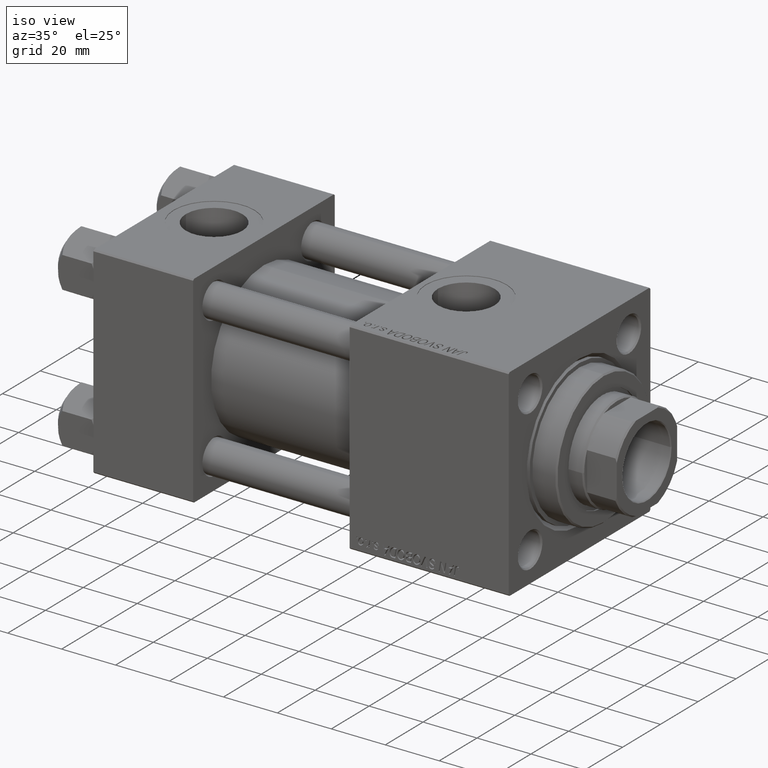
[diagram: clean part render]
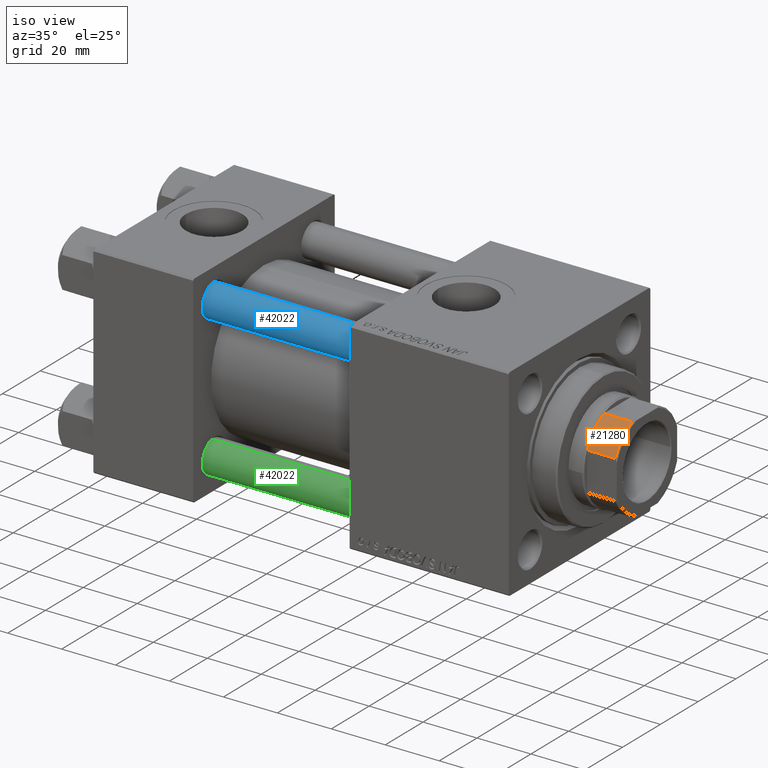
[diagram: same view with three faces highlighted in distinct colors, each labeled with its STEP entity id]
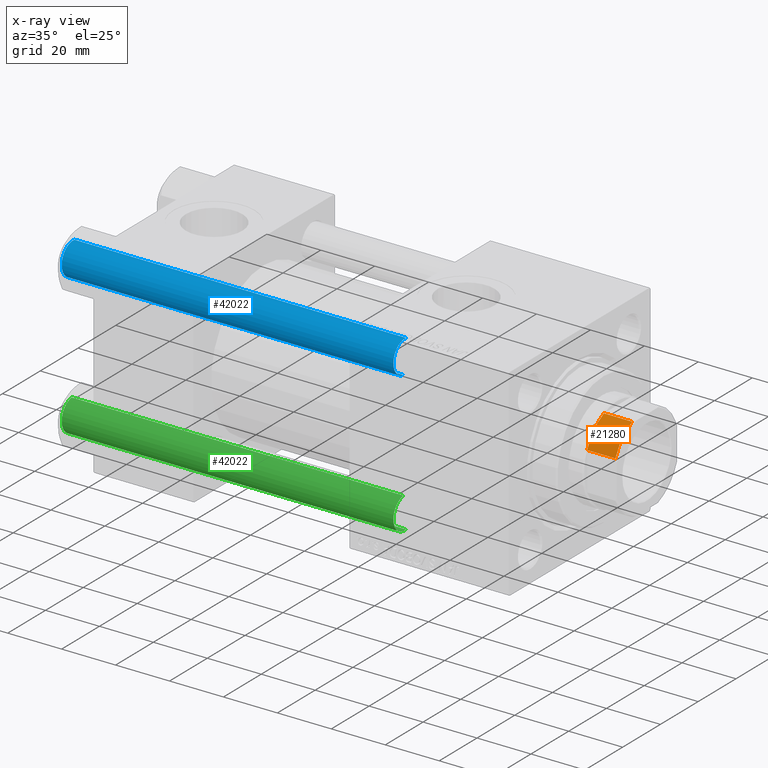
[diagram: x-ray of the same camera — body ghosted, the three highlighted faces saturated]
A machine part, iso view with three faces highlighted in distinct colors.
The next image is the same camera in x-ray (body ghosted, the three faces saturated) — at least one of them is partly hidden behind the body in this view.
Their STEP definitions:

[orange] entity #21280 — the highlighted cylindrical surface (partial cylindrical patch) has radius 17.5 mm, axis along (1, 0, 0).
#4210 = DIRECTION ( 'NONE',  ( 1.000000000000000000, 0.000000000000000000, 0.000000000000000000 ) ) ;
#4360 = CARTESIAN_POINT ( 'NONE',  ( 0.000000000000000000, 0.000000000000000000, 141.5000000000000284 ) ) ;
#4707 = CIRCLE ( 'NONE', #24196, 17.50000000000000000 ) ;
#4791 = EDGE_CURVE ( 'NONE', #11522, #18567, #9412, .T. ) ;
#4814 = FACE_OUTER_BOUND ( 'NONE', #8029, .T. ) ;
#7500 = DIRECTION ( 'NONE',  ( 0.000000000000000000, 0.000000000000000000, 1.000000000000000000 ) ) ;
#8029 = EDGE_LOOP ( 'NONE', ( #20080, #13726, #49669, #9561 ) ) ;
#9412 = LINE ( 'NONE', #10148, #15543 ) ;
#9561 = ORIENTED_EDGE ( 'NONE', *, *, #40441, .T. ) ;
#10148 = CARTESIAN_POINT ( 'NONE',  ( 15.99999999999999645, -7.088723439378925129, -0.001000000000001000089 ) ) ;
#11522 = VERTEX_POINT ( 'NONE', #25173 ) ;
#13726 = ORIENTED_EDGE ( 'NONE', *, *, #41921, .T. ) ;
#15543 = VECTOR ( 'NONE', #36829, 1000.000000000000000 ) ;
#16160 = VERTEX_POINT ( 'NONE', #24770 ) ;
#18567 = VERTEX_POINT ( 'NONE', #22635 ) ;
#18787 = EDGE_CURVE ( 'NONE', #16160, #36904, #36817, .T. ) ;
#19588 = DIRECTION ( 'NONE',  ( -0.000000000000000000, -0.000000000000000000, -1.000000000000000000 ) ) ;
#20080 = ORIENTED_EDGE ( 'NONE', *, *, #4791, .T. ) ;
#20308 = DIRECTION ( 'NONE',  ( -0.000000000000000000, -0.000000000000000000, 1.000000000000000000 ) ) ;
#21280 = ADVANCED_FACE ( 'NONE', ( #4814 ), #38603, .T. ) ;
#22635 = CARTESIAN_POINT ( 'NONE',  ( 15.99999999999999645, -7.088723439378925129, 141.5000000000000284 ) ) ;
#24196 = AXIS2_PLACEMENT_3D ( 'NONE', #4360, #19588, #31020 ) ;
#24462 = AXIS2_PLACEMENT_3D ( 'NONE', #35041, #20308, #35788 ) ;
#24770 = CARTESIAN_POINT ( 'NONE',  ( 7.088723439378915359, -16.00000000000000000, 131.0000000000000284 ) ) ;
#24801 = VECTOR ( 'NONE', #29185, 1000.000000000000000 ) ;
#25173 = CARTESIAN_POINT ( 'NONE',  ( 15.99999999999999645, -7.088723439378925129, 131.0000000000000284 ) ) ;
#29185 = DIRECTION ( 'NONE',  ( -0.000000000000000000, -0.000000000000000000, 1.000000000000000000 ) ) ;
#30614 = AXIS2_PLACEMENT_3D ( 'NONE', #34931, #7500, #4210 ) ;
#31020 = DIRECTION ( 'NONE',  ( 1.000000000000000000, 0.000000000000000000, 0.000000000000000000 ) ) ;
#31440 = CIRCLE ( 'NONE', #30614, 17.50000000000003908 ) ;
#34931 = CARTESIAN_POINT ( 'NONE',  ( 0.000000000000000000, 0.000000000000000000, 131.0000000000000000 ) ) ;
#35041 = CARTESIAN_POINT ( 'NONE',  ( 0.000000000000000000, 0.000000000000000000, -0.001000000000001000089 ) ) ;
#35788 = DIRECTION ( 'NONE',  ( 1.000000000000000000, 0.000000000000000000, 0.000000000000000000 ) ) ;
#36817 = LINE ( 'NONE', #47732, #24801 ) ;
#36829 = DIRECTION ( 'NONE',  ( -0.000000000000000000, -0.000000000000000000, 1.000000000000000000 ) ) ;
#36904 = VERTEX_POINT ( 'NONE', #39230 ) ;
#38603 = CYLINDRICAL_SURFACE ( 'NONE', #24462, 17.50000000000000000 ) ;
#39230 = CARTESIAN_POINT ( 'NONE',  ( 7.088723439378915359, -16.00000000000000000, 141.5000000000000284 ) ) ;
#40441 = EDGE_CURVE ( 'NONE', #16160, #11522, #31440, .T. ) ;
#41921 = EDGE_CURVE ( 'NONE', #18567, #36904, #4707, .T. ) ;
#47732 = CARTESIAN_POINT ( 'NONE',  ( 7.088723439378915359, -16.00000000000000000, -0.001000000000001000089 ) ) ;
#49669 = ORIENTED_EDGE ( 'NONE', *, *, #18787, .F. ) ;

[blue] entity #42022 — the highlighted cylindrical surface (edge-blend (fillet) strip) has radius 6 mm, axis along (1, 0, -0).
#2367 = CARTESIAN_POINT ( 'NONE',  ( 6.000000000000000888, 7.347880794884120722E-16, 123.5000000000000426 ) ) ;
#2430 = ORIENTED_EDGE ( 'NONE', *, *, #5201, .T. ) ;
#4036 = EDGE_CURVE ( 'NONE', #18963, #17575, #44673, .T. ) ;
#5201 = EDGE_CURVE ( 'NONE', #28241, #17575, #13118, .T. ) ;
#6894 = CARTESIAN_POINT ( 'NONE',  ( 6.000000000000000888, 7.347880794884120722E-16, 124.0000000000000000 ) ) ;
#9070 = ORIENTED_EDGE ( 'NONE', *, *, #4036, .F. ) ;
#11880 = AXIS2_PLACEMENT_3D ( 'NONE', #47180, #27911, #24351 ) ;
#12324 = AXIS2_PLACEMENT_3D ( 'NONE', #28841, #44326, #25045 ) ;
#13118 = CIRCLE ( 'NONE', #12324, 6.000000000000000888 ) ;
#13223 = CARTESIAN_POINT ( 'NONE',  ( 0.000000000000000000, 0.000000000000000000, 124.0000000000000000 ) ) ;
#17131 = ORIENTED_EDGE ( 'NONE', *, *, #41762, .T. ) ;
#17575 = VERTEX_POINT ( 'NONE', #23180 ) ;
#18963 = VERTEX_POINT ( 'NONE', #31209 ) ;
#19840 = EDGE_CURVE ( 'NONE', #18963, #24763, #33756, .T. ) ;
#21646 = LINE ( 'NONE', #6894, #31476 ) ;
#23180 = CARTESIAN_POINT ( 'NONE',  ( -6.000000000000000888, 0.000000000000000000, 0.4999999999999865663 ) ) ;
#24351 = DIRECTION ( 'NONE',  ( 1.000000000000000000, 0.000000000000000000, 0.000000000000000000 ) ) ;
#24673 = DIRECTION ( 'NONE',  ( -1.000000000000000000, 0.000000000000000000, 0.000000000000000000 ) ) ;
#24763 = VERTEX_POINT ( 'NONE', #2367 ) ;
#25045 = DIRECTION ( 'NONE',  ( 1.000000000000000000, 0.000000000000000000, 0.000000000000000000 ) ) ;
#27911 = DIRECTION ( 'NONE',  ( 0.000000000000000000, 0.000000000000000000, -1.000000000000000000 ) ) ;
#28241 = VERTEX_POINT ( 'NONE', #38180 ) ;
#28814 = ORIENTED_EDGE ( 'NONE', *, *, #19840, .T. ) ;
#28841 = CARTESIAN_POINT ( 'NONE',  ( 0.000000000000000000, 0.000000000000000000, 0.4999999999999865663 ) ) ;
#31209 = CARTESIAN_POINT ( 'NONE',  ( -6.000000000000000888, 0.000000000000000000, 123.5000000000000426 ) ) ;
#31476 = VECTOR ( 'NONE', #37132, 1000.000000000000000 ) ;
#33245 = DIRECTION ( 'NONE',  ( -0.000000000000000000, -0.000000000000000000, -1.000000000000000000 ) ) ;
#33327 = VECTOR ( 'NONE', #33245, 1000.000000000000000 ) ;
#33756 = CIRCLE ( 'NONE', #11880, 6.000000000000000888 ) ;
#36077 = CYLINDRICAL_SURFACE ( 'NONE', #47683, 6.000000000000000888 ) ;
#37065 = CARTESIAN_POINT ( 'NONE',  ( -6.000000000000000888, 0.000000000000000000, 124.0000000000000000 ) ) ;
#37132 = DIRECTION ( 'NONE',  ( -0.000000000000000000, -0.000000000000000000, -1.000000000000000000 ) ) ;
#38180 = CARTESIAN_POINT ( 'NONE',  ( 6.000000000000000888, 7.347880794884120722E-16, 0.4999999999999865663 ) ) ;
#41452 = EDGE_LOOP ( 'NONE', ( #28814, #17131, #2430, #9070 ) ) ;
#41762 = EDGE_CURVE ( 'NONE', #24763, #28241, #21646, .T. ) ;
#42022 = ADVANCED_FACE ( 'NONE', ( #47490 ), #36077, .T. ) ;
#43695 = DIRECTION ( 'NONE',  ( -0.000000000000000000, -0.000000000000000000, -1.000000000000000000 ) ) ;
#44326 = DIRECTION ( 'NONE',  ( -0.000000000000000000, -0.000000000000000000, 1.000000000000000000 ) ) ;
#44673 = LINE ( 'NONE', #37065, #33327 ) ;
#47180 = CARTESIAN_POINT ( 'NONE',  ( 0.000000000000000000, 0.000000000000000000, 123.5000000000000426 ) ) ;
#47490 = FACE_OUTER_BOUND ( 'NONE', #41452, .T. ) ;
#47683 = AXIS2_PLACEMENT_3D ( 'NONE', #13223, #43695, #24673 ) ;

[green] entity #42022 — the highlighted cylindrical surface (edge-blend (fillet) strip) has radius 6 mm, axis along (-1, -0, -0).
#2367 = CARTESIAN_POINT ( 'NONE',  ( 6.000000000000000888, 7.347880794884120722E-16, 123.5000000000000426 ) ) ;
#2430 = ORIENTED_EDGE ( 'NONE', *, *, #5201, .T. ) ;
#4036 = EDGE_CURVE ( 'NONE', #18963, #17575, #44673, .T. ) ;
#5201 = EDGE_CURVE ( 'NONE', #28241, #17575, #13118, .T. ) ;
#6894 = CARTESIAN_POINT ( 'NONE',  ( 6.000000000000000888, 7.347880794884120722E-16, 124.0000000000000000 ) ) ;
#9070 = ORIENTED_EDGE ( 'NONE', *, *, #4036, .F. ) ;
#11880 = AXIS2_PLACEMENT_3D ( 'NONE', #47180, #27911, #24351 ) ;
#12324 = AXIS2_PLACEMENT_3D ( 'NONE', #28841, #44326, #25045 ) ;
#13118 = CIRCLE ( 'NONE', #12324, 6.000000000000000888 ) ;
#13223 = CARTESIAN_POINT ( 'NONE',  ( 0.000000000000000000, 0.000000000000000000, 124.0000000000000000 ) ) ;
#17131 = ORIENTED_EDGE ( 'NONE', *, *, #41762, .T. ) ;
#17575 = VERTEX_POINT ( 'NONE', #23180 ) ;
#18963 = VERTEX_POINT ( 'NONE', #31209 ) ;
#19840 = EDGE_CURVE ( 'NONE', #18963, #24763, #33756, .T. ) ;
#21646 = LINE ( 'NONE', #6894, #31476 ) ;
#23180 = CARTESIAN_POINT ( 'NONE',  ( -6.000000000000000888, 0.000000000000000000, 0.4999999999999865663 ) ) ;
#24351 = DIRECTION ( 'NONE',  ( 1.000000000000000000, 0.000000000000000000, 0.000000000000000000 ) ) ;
#24673 = DIRECTION ( 'NONE',  ( -1.000000000000000000, 0.000000000000000000, 0.000000000000000000 ) ) ;
#24763 = VERTEX_POINT ( 'NONE', #2367 ) ;
#25045 = DIRECTION ( 'NONE',  ( 1.000000000000000000, 0.000000000000000000, 0.000000000000000000 ) ) ;
#27911 = DIRECTION ( 'NONE',  ( 0.000000000000000000, 0.000000000000000000, -1.000000000000000000 ) ) ;
#28241 = VERTEX_POINT ( 'NONE', #38180 ) ;
#28814 = ORIENTED_EDGE ( 'NONE', *, *, #19840, .T. ) ;
#28841 = CARTESIAN_POINT ( 'NONE',  ( 0.000000000000000000, 0.000000000000000000, 0.4999999999999865663 ) ) ;
#31209 = CARTESIAN_POINT ( 'NONE',  ( -6.000000000000000888, 0.000000000000000000, 123.5000000000000426 ) ) ;
#31476 = VECTOR ( 'NONE', #37132, 1000.000000000000000 ) ;
#33245 = DIRECTION ( 'NONE',  ( -0.000000000000000000, -0.000000000000000000, -1.000000000000000000 ) ) ;
#33327 = VECTOR ( 'NONE', #33245, 1000.000000000000000 ) ;
#33756 = CIRCLE ( 'NONE', #11880, 6.000000000000000888 ) ;
#36077 = CYLINDRICAL_SURFACE ( 'NONE', #47683, 6.000000000000000888 ) ;
#37065 = CARTESIAN_POINT ( 'NONE',  ( -6.000000000000000888, 0.000000000000000000, 124.0000000000000000 ) ) ;
#37132 = DIRECTION ( 'NONE',  ( -0.000000000000000000, -0.000000000000000000, -1.000000000000000000 ) ) ;
#38180 = CARTESIAN_POINT ( 'NONE',  ( 6.000000000000000888, 7.347880794884120722E-16, 0.4999999999999865663 ) ) ;
#41452 = EDGE_LOOP ( 'NONE', ( #28814, #17131, #2430, #9070 ) ) ;
#41762 = EDGE_CURVE ( 'NONE', #24763, #28241, #21646, .T. ) ;
#42022 = ADVANCED_FACE ( 'NONE', ( #47490 ), #36077, .T. ) ;
#43695 = DIRECTION ( 'NONE',  ( -0.000000000000000000, -0.000000000000000000, -1.000000000000000000 ) ) ;
#44326 = DIRECTION ( 'NONE',  ( -0.000000000000000000, -0.000000000000000000, 1.000000000000000000 ) ) ;
#44673 = LINE ( 'NONE', #37065, #33327 ) ;
#47180 = CARTESIAN_POINT ( 'NONE',  ( 0.000000000000000000, 0.000000000000000000, 123.5000000000000426 ) ) ;
#47490 = FACE_OUTER_BOUND ( 'NONE', #41452, .T. ) ;
#47683 = AXIS2_PLACEMENT_3D ( 'NONE', #13223, #43695, #24673 ) ;